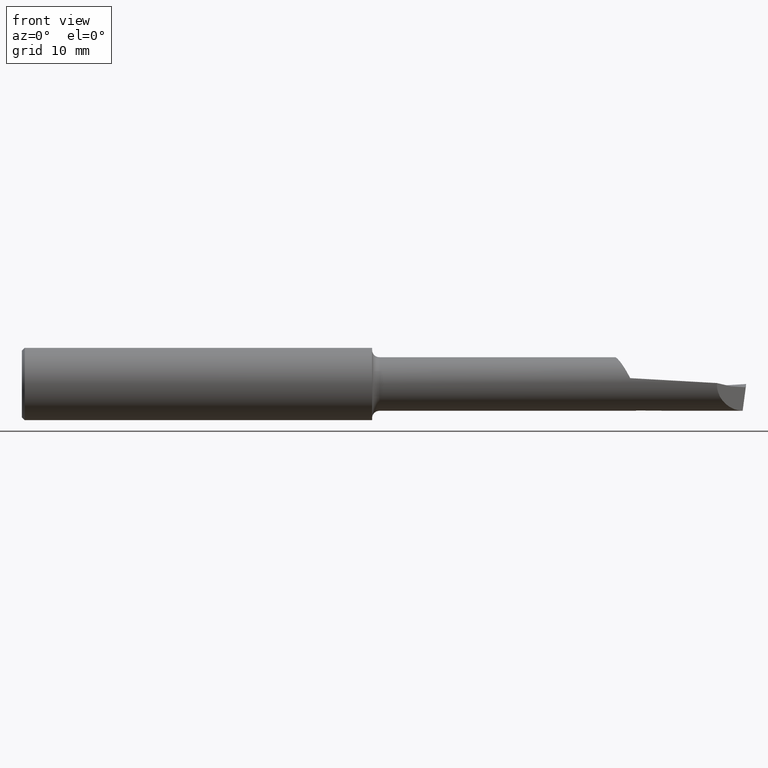
[diagram: clean part render]
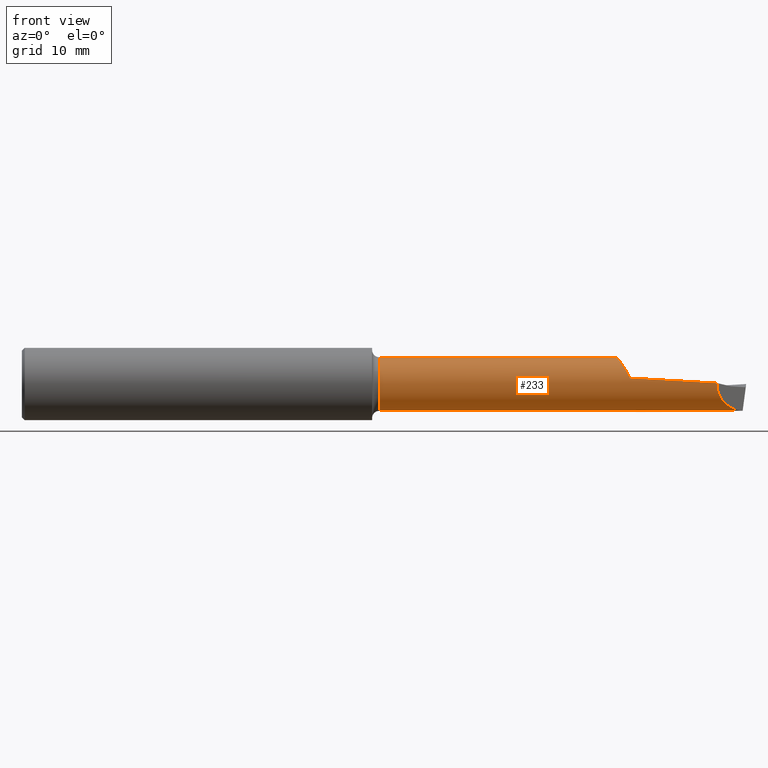
[diagram: same view with one face highlighted and labeled with its STEP entity id]
A machine part, front view. The second image highlights one B-rep face of the part: STEP entity #233.
In plain terms, the highlighted cylindrical surface (edge-blend (fillet) strip) has radius 2.3495 mm, axis along (-1, -0, -0).
Its self-contained STEP definition (entity closure, byte-faithful):
#4 = EDGE_CURVE ( 'NONE', #611, #585, #375, .T. ) ;
#12 = CARTESIAN_POINT ( 'NONE',  ( 2.064632393218945428, -0.05062565620870612682, 0.07748382293347116923 ) ) ;
#24 = CIRCLE ( 'NONE', #600, 0.09250000000000004052 ) ;
#50 = VERTEX_POINT ( 'NONE', #500 ) ;
#54 = CIRCLE ( 'NONE', #148, 0.09250000000000006828 ) ;
#58 = VERTEX_POINT ( 'NONE', #274 ) ;
#60 = CARTESIAN_POINT ( 'NONE',  ( 2.063224009766620348, -0.04778499748353295246, 0.07925519998079094686 ) ) ;
#64 = CARTESIAN_POINT ( 'NONE',  ( 2.066924862295452137, -0.05487806547671817553, 0.07446320367560980980 ) ) ;
#69 = CARTESIAN_POINT ( 'NONE',  ( 2.059668613704617623, -0.04013664932119070938, 0.08354322363455572720 ) ) ;
#74 = ORIENTED_EDGE ( 'NONE', *, *, #323, .T. ) ;
#99 = AXIS2_PLACEMENT_3D ( 'NONE', #633, #338, #649 ) ;
#104 = VERTEX_POINT ( 'NONE', #626 ) ;
#106 = CARTESIAN_POINT ( 'NONE',  ( 2.047909686212891156, -1.554536630577597272E-06, 0.09251412615423502961 ) ) ;
#121 = VECTOR ( 'NONE', #565, 39.37007874015748143 ) ;
#134 = VERTEX_POINT ( 'NONE', #159 ) ;
#142 = CARTESIAN_POINT ( 'NONE',  ( 2.398761991375083724, -0.09244204618670318063, 0.003273850457099876637 ) ) ;
#146 = DIRECTION ( 'NONE',  ( 1.000000000000000000, -0.000000000000000000, -0.000000000000000000 ) ) ;
#148 = AXIS2_PLACEMENT_3D ( 'NONE', #264, #494, #430 ) ;
#151 = B_SPLINE_CURVE_WITH_KNOTS ( 'NONE', 3,
 ( #222, #597, #607, #543, #257, #483, #367, #64, #362, #656, #189, #418, #12, #60, #69, #306, #666, #539, #302 ),
 .UNSPECIFIED., .F., .F.,
 ( 4, 2, 2, 1, 2, 2, 1, 1, 2, 2, 4 ),
 ( 0.000000000000000000, 0.2282707196234882996, 0.4565414392469766547, 0.4850752791999117242, 0.4993421991763793977, 0.5029089291704984532, 0.5064756591646176753, 0.5136091191528541211, 0.5706767990587585659, 0.6848121588705655682, 0.9130828784941777965 ),
 .UNSPECIFIED. ) ;
#153 = CARTESIAN_POINT ( 'NONE',  ( 2.255347661285690197, 2.667820306312757049E-18, -0.09249999999999990175 ) ) ;
#154 = CARTESIAN_POINT ( 'NONE',  ( 2.487723492803501912, 0.000000000000000000, -0.09249999999999992950 ) ) ;
#159 = CARTESIAN_POINT ( 'NONE',  ( 2.255347661285690197, 2.667820306312757049E-18, -0.09249999999999990175 ) ) ;
#180 = CARTESIAN_POINT ( 'NONE',  ( 2.249186691865721954, -0.09213690762715877336, 0.01188989238826932381 ) ) ;
#189 = CARTESIAN_POINT ( 'NONE',  ( 2.066459374109550051, -0.05402831517415591228, 0.07508147086510379153 ) ) ;
#190 = EDGE_CURVE ( 'NONE', #346, #58, #457, .T. ) ;
#222 = CARTESIAN_POINT ( 'NONE',  ( 2.099985204774065028, -0.09024474448373209778, 0.02030113526544562522 ) ) ;
#233 = ADVANCED_FACE ( 'NONE', ( #401 ), #389, .T. ) ;
#248 = ORIENTED_EDGE ( 'NONE', *, *, #512, .T. ) ;
#257 = CARTESIAN_POINT ( 'NONE',  ( 2.071197751350749350, -0.06224497473912794787, 0.06871714438118152468 ) ) ;
#261 = CARTESIAN_POINT ( 'NONE',  ( 2.433661045213732610, -0.05754299234805449609, -0.09038568734144179773 ) ) ;
#262 = EDGE_CURVE ( 'NONE', #428, #611, #151, .T. ) ;
#264 = CARTESIAN_POINT ( 'NONE',  ( 1.233895135488211947, 0.000000000000000000, 0.000000000000000000 ) ) ;
#270 = EDGE_LOOP ( 'NONE', ( #727, #248, #354, #368, #714, #751, #74, #700, #540, #518 ) ) ;
#274 = CARTESIAN_POINT ( 'NONE',  ( 1.233895135488211947, 1.132798289211302752E-17, -0.09250000000000006828 ) ) ;
#280 = CARTESIAN_POINT ( 'NONE',  ( 2.487705824692297618, -0.002335800290255904670, -0.09247787990872857744 ) ) ;
#302 = CARTESIAN_POINT ( 'NONE',  ( 2.047909686212891156, -1.554536630577597272E-06, 0.09251412615423502961 ) ) ;
#306 = CARTESIAN_POINT ( 'NONE',  ( 2.057565407188882034, -0.03494212542111583414, 0.08581955901723029023 ) ) ;
#322 = CARTESIAN_POINT ( 'NONE',  ( 2.398761991375083724, -0.09244204618670318063, 0.003273850457099876637 ) ) ;
#323 = EDGE_CURVE ( 'NONE', #350, #428, #460, .T. ) ;
#338 = DIRECTION ( 'NONE',  ( -1.000000000000000000, -0.000000000000000000, -0.000000000000000000 ) ) ;
#346 = VERTEX_POINT ( 'NONE', #617 ) ;
#350 = VERTEX_POINT ( 'NONE', #322 ) ;
#354 = ORIENTED_EDGE ( 'NONE', *, *, #752, .T. ) ;
#362 = CARTESIAN_POINT ( 'NONE',  ( 2.066732102188529652, -0.05452740403586520124, 0.07471960758305622174 ) ) ;
#367 = CARTESIAN_POINT ( 'NONE',  ( 2.067401435210661553, -0.05573592228519117647, 0.07382865587468545598 ) ) ;
#368 = ORIENTED_EDGE ( 'NONE', *, *, #462, .T. ) ;
#375 = LINE ( 'NONE', #511, #121 ) ;
#378 = CARTESIAN_POINT ( 'NONE',  ( 2.099985204774065028, -0.09024474448373209778, 0.02030113526544562522 ) ) ;
#389 = CYLINDRICAL_SURFACE ( 'NONE', #99, 0.09250000000000004052 ) ;
#399 = B_SPLINE_CURVE_WITH_KNOTS ( 'NONE', 3,
 ( #624, #689, #443, #153 ),
 .UNSPECIFIED., .F., .F.,
 ( 4, 4 ),
 ( 0.000000000000000000, 0.003456506819781745340 ),
 .UNSPECIFIED. ) ;
#401 = FACE_OUTER_BOUND ( 'NONE', #270, .T. ) ;
#405 = CARTESIAN_POINT ( 'NONE',  ( 2.099985204774065028, -0.09024474448373209778, 0.02030113526544562522 ) ) ;
#407 = EDGE_CURVE ( 'NONE', #350, #50, #465, .T. ) ;
#418 = CARTESIAN_POINT ( 'NONE',  ( 2.066208213237177294, -0.05356572789672646440, 0.07541362391561989842 ) ) ;
#427 = CARTESIAN_POINT ( 'NONE',  ( 2.487701070223761857, -0.003502967338024744973, -0.09243364766051770376 ) ) ;
#428 = VERTEX_POINT ( 'NONE', #378 ) ;
#430 = DIRECTION ( 'NONE',  ( 0.000000000000000000, 0.000000000000000000, 1.000000000000000000 ) ) ;
#443 = CARTESIAN_POINT ( 'NONE',  ( 2.210237768285117532, -0.004780463194695070382, -0.09249999999999992950 ) ) ;
#448 = CARTESIAN_POINT ( 'NONE',  ( 1.233895135488211947, 0.000000000000000000, 0.09250000000000006828 ) ) ;
#453 = CARTESIAN_POINT ( 'NONE',  ( 2.120000000000000107, 0.000000000000000000, 0.000000000000000000 ) ) ;
#457 = LINE ( 'NONE', #514, #594 ) ;
#460 =( BOUNDED_CURVE ( )  B_SPLINE_CURVE ( 2, ( #717, #180, #405 ),
 .UNSPECIFIED., .F., .T. ) 
 B_SPLINE_CURVE_WITH_KNOTS ( ( 3, 3 ),
 ( 0.1109587072986240042, 0.4360622139891772719 ),
 .UNSPECIFIED. ) 
 CURVE ( )  GEOMETRIC_REPRESENTATION_ITEM ( )  RATIONAL_B_SPLINE_CURVE ( ( 0.9734215292658963126, 0.9698259248218302764, 0.9746374891455962253 ) ) 
 REPRESENTATION_ITEM ( '' )  );
#462 = EDGE_CURVE ( 'NONE', #134, #104, #684, .T. ) ;
#465 =( BOUNDED_CURVE ( )  B_SPLINE_CURVE ( 3, ( #142, #505, #261, #427 ),
 .UNSPECIFIED., .F., .F. ) 
 B_SPLINE_CURVE_WITH_KNOTS ( ( 4, 4 ),
 ( 6.247784935851605326, 7.816102659225365734 ),
 .UNSPECIFIED. ) 
 CURVE ( )  GEOMETRIC_REPRESENTATION_ITEM ( )  RATIONAL_B_SPLINE_CURVE ( ( 1.000000000000000000, 0.8053217043961202748, 0.8053217043961202748, 1.000000000000000000 ) ) 
 REPRESENTATION_ITEM ( '' )  );
#483 = CARTESIAN_POINT ( 'NONE',  ( 2.067919854101655464, -0.05664095340334891759, 0.07313467737844994709 ) ) ;
#494 = DIRECTION ( 'NONE',  ( -1.000000000000000000, -0.000000000000000000, -0.000000000000000000 ) ) ;
#497 = EDGE_CURVE ( 'NONE', #58, #585, #54, .T. ) ;
#500 = CARTESIAN_POINT ( 'NONE',  ( 2.487701070223761857, -0.003502967338024744973, -0.09243364766051770376 ) ) ;
#505 = CARTESIAN_POINT ( 'NONE',  ( 2.396847981000522321, -0.09435605656126440366, -0.05077108463250118442 ) ) ;
#511 = CARTESIAN_POINT ( 'NONE',  ( 0.000000000000000000, 0.000000000000000000, 0.09250000000000004052 ) ) ;
#512 = EDGE_CURVE ( 'NONE', #346, #657, #24, .T. ) ;
#514 = CARTESIAN_POINT ( 'NONE',  ( 0.000000000000000000, 1.132798289211302290E-17, -0.09250000000000004052 ) ) ;
#518 = ORIENTED_EDGE ( 'NONE', *, *, #497, .F. ) ;
#539 = CARTESIAN_POINT ( 'NONE',  ( 2.049452892340596133, -0.009316029406795791473, 0.09249996228234926010 ) ) ;
#540 = ORIENTED_EDGE ( 'NONE', *, *, #4, .T. ) ;
#543 = CARTESIAN_POINT ( 'NONE',  ( 2.075301723327796832, -0.06855649903353110142, 0.06298298239382445207 ) ) ;
#552 = CARTESIAN_POINT ( 'NONE',  ( 2.120000000000000107, 0.000000000000000000, -0.09249999999999992950 ) ) ;
#565 = DIRECTION ( 'NONE',  ( -1.000000000000000000, -0.000000000000000000, -0.000000000000000000 ) ) ;
#567 = CARTESIAN_POINT ( 'NONE',  ( 2.487701070223761857, -0.003502967338024744973, -0.09243364766051770376 ) ) ;
#573 =( BOUNDED_CURVE ( )  B_SPLINE_CURVE ( 3, ( #567, #280, #749, #154 ),
 .UNSPECIFIED., .F., .F. ) 
 B_SPLINE_CURVE_WITH_KNOTS ( ( 4, 4 ),
 ( 0.03307364821532068899, 0.07095262296443420602 ),
 .UNSPECIFIED. ) 
 CURVE ( )  GEOMETRIC_REPRESENTATION_ITEM ( )  RATIONAL_B_SPLINE_CURVE ( ( 1.000000000000000000, 0.9998804355134170985, 0.9998804355134170985, 1.000000000000000000 ) ) 
 REPRESENTATION_ITEM ( '' )  );
#585 = VERTEX_POINT ( 'NONE', #448 ) ;
#594 = VECTOR ( 'NONE', #757, 39.37007874015748143 ) ;
#597 = CARTESIAN_POINT ( 'NONE',  ( 2.092374781392567051, -0.08702720584656492564, 0.03461678013649809732 ) ) ;
#600 = AXIS2_PLACEMENT_3D ( 'NONE', #453, #756, #707 ) ;
#607 = CARTESIAN_POINT ( 'NONE',  ( 2.085890238348705683, -0.08094550312319560847, 0.04598559725705525514 ) ) ;
#611 = VERTEX_POINT ( 'NONE', #106 ) ;
#617 = CARTESIAN_POINT ( 'NONE',  ( 2.120000000000000107, 1.132798289211302290E-17, -0.09250000000000004052 ) ) ;
#624 = CARTESIAN_POINT ( 'NONE',  ( 2.120000000000000107, -0.01408598121421843381, -0.09142119630169293076 ) ) ;
#626 = CARTESIAN_POINT ( 'NONE',  ( 2.487723492803501912, 0.000000000000000000, -0.09249999999999992950 ) ) ;
#633 = CARTESIAN_POINT ( 'NONE',  ( 0.000000000000000000, 0.000000000000000000, 0.000000000000000000 ) ) ;
#635 = EDGE_CURVE ( 'NONE', #50, #104, #573, .T. ) ;
#649 = DIRECTION ( 'NONE',  ( 0.000000000000000000, 0.000000000000000000, 1.000000000000000000 ) ) ;
#656 = CARTESIAN_POINT ( 'NONE',  ( 2.066627336287861105, -0.05433633409741091269, 0.07485885989433643806 ) ) ;
#657 = VERTEX_POINT ( 'NONE', #721 ) ;
#665 = VECTOR ( 'NONE', #146, 39.37007874015748143 ) ;
#666 = CARTESIAN_POINT ( 'NONE',  ( 2.052056960218472614, -0.01946374552352240703, 0.09108352192149235527 ) ) ;
#684 = LINE ( 'NONE', #552, #665 ) ;
#689 = CARTESIAN_POINT ( 'NONE',  ( 2.165123023610928676, -0.009485967679078336628, -0.09212995648928998249 ) ) ;
#700 = ORIENTED_EDGE ( 'NONE', *, *, #262, .T. ) ;
#707 = DIRECTION ( 'NONE',  ( 0.000000000000000000, 0.000000000000000000, -1.000000000000000000 ) ) ;
#714 = ORIENTED_EDGE ( 'NONE', *, *, #635, .F. ) ;
#717 = CARTESIAN_POINT ( 'NONE',  ( 2.398761991375083724, -0.09244204618670318063, 0.003273850457099876637 ) ) ;
#721 = CARTESIAN_POINT ( 'NONE',  ( 2.120000000000000107, -0.01408598121421843381, -0.09142119630169293076 ) ) ;
#727 = ORIENTED_EDGE ( 'NONE', *, *, #190, .F. ) ;
#749 = CARTESIAN_POINT ( 'NONE',  ( 2.487713299779299891, -0.001168004884056162958, -0.09250000000000005440 ) ) ;
#751 = ORIENTED_EDGE ( 'NONE', *, *, #407, .F. ) ;
#752 = EDGE_CURVE ( 'NONE', #657, #134, #399, .T. ) ;
#756 = DIRECTION ( 'NONE',  ( -1.000000000000000000, -0.000000000000000000, -0.000000000000000000 ) ) ;
#757 = DIRECTION ( 'NONE',  ( -1.000000000000000000, -0.000000000000000000, -0.000000000000000000 ) ) ;